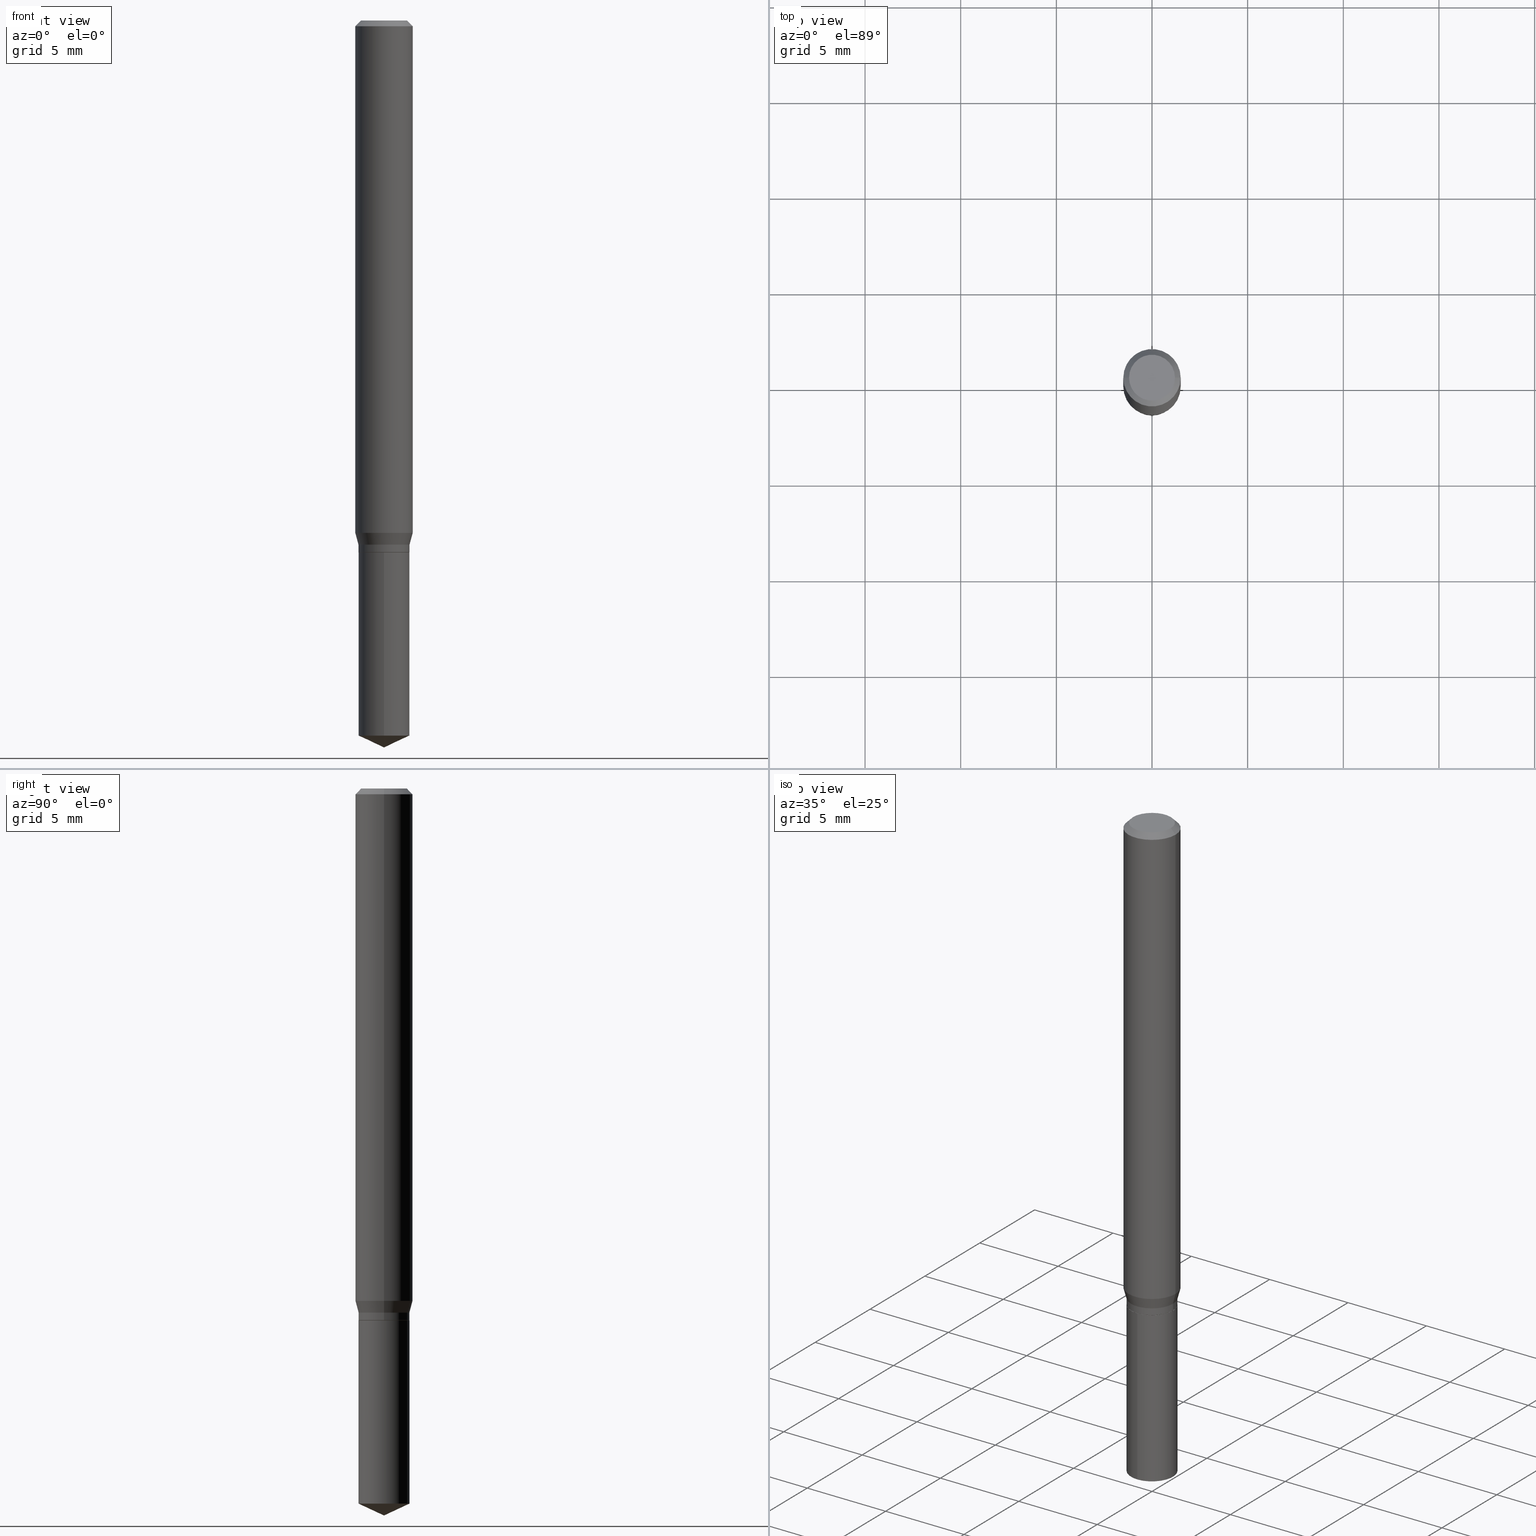
[diagram: canonical four-view strip — front | top / right | iso, engineering-drawing reading convention]
A machine part, canonical four-view strip (front | top / right | iso — engineering-drawing reading convention). The complete STEP part file that produces these views, byte-faithful:
ISO-10303-21;
HEADER;
FILE_DESCRIPTION (( 'STEP AP203' ),
    '1' );
FILE_NAME ('08025.STEP',
    '2024-04-24T09:11:59',
    ( '' ),
    ( '' ),
    'SwSTEP 2.0',
    'SolidWorks 2023',
    '' );
FILE_SCHEMA (( 'CONFIG_CONTROL_DESIGN' ));
ENDSEC;

DATA;
#1 = CONICAL_SURFACE ( 'NONE', #172, 84.42940631927412198, 1.134464013796314896 ) ;
#2 = PRODUCT_DEFINITION_FORMATION_WITH_SPECIFIED_SOURCE ( 'ANY', '', #157, .NOT_KNOWN. ) ;
#3 = EDGE_CURVE ( 'NONE', #90, #280, #180, .T. ) ;
#4 = CARTESIAN_POINT ( 'NONE',  ( 2.578604211317355052E-29, -3.681563412833531563E-15, -1.054441669750801669 ) ) ;
#5 = CALENDAR_DATE ( 2024, 24, 4 ) ;
#6 = CARTESIAN_POINT ( 'NONE',  ( 0.05254999999999999949, -3.669546887124133129E-16, 2.562430895680764282E-30 ) ) ;
#7 = SECURITY_CLASSIFICATION_LEVEL ( 'unclassified' ) ;
#8 = CARTESIAN_POINT ( 'NONE',  ( 0.05204999999999999211, -4.184889532737392438E-15, -1.094499999999999806 ) ) ;
#9 = CALENDAR_DATE ( 2024, 24, 4 ) ;
#10 = CONICAL_SURFACE ( 'NONE', #47, 84.42940631927412198, 1.134464013796314896 ) ;
#11 = DIRECTION ( 'NONE',  ( -2.445468806185136877E-29, 3.491481338843145188E-15, 1.000000000000000000 ) ) ;
#12 =( NAMED_UNIT ( * ) PLANE_ANGLE_UNIT ( ) SI_UNIT ( $, .RADIAN. ) );
#13 = EDGE_CURVE ( 'NONE', #148, #395, #270, .T. ) ;
#14 = DIRECTION ( 'NONE',  ( -2.445468806185136877E-29, 3.491481338843145188E-15, 1.000000000000000000 ) ) ;
#15 = DIRECTION ( 'NONE',  ( -6.982962677686267499E-15, -1.000000000000000000, 3.520397390770462942E-15 ) ) ;
#16 = EDGE_LOOP ( 'NONE', ( #363, #103, #100, #290 ) ) ;
#17 = EDGE_CURVE ( 'NONE', #203, #184, #222, .T. ) ;
#18 = AXIS2_PLACEMENT_3D ( 'NONE', #313, #399, #432 ) ;
#19 = DIRECTION ( 'NONE',  ( -2.445458899330790108E-29, 3.491495526022433599E-15, 1.000000000000000000 ) ) ;
#20 = APPROVAL_PERSON_ORGANIZATION ( #262, #150, #451 ) ;
#21 = VERTEX_POINT ( 'NONE', #217 ) ;
#22 = CARTESIAN_POINT ( 'NONE',  ( -3.669546887123774197E-16, -0.05255000000000515509, -1.471595532563954478 ) ) ;
#23 = CARTESIAN_POINT ( 'NONE',  ( 3.658672935554494692E-29, -5.223595400746700193E-15, -1.496099999999999985 ) ) ;
#24 = ORIENTED_EDGE ( 'NONE', *, *, #436, .T. ) ;
#25 = ORIENTED_EDGE ( 'NONE', *, *, #267, .T. ) ;
#26 = LINE ( 'NONE', #68, #242 ) ;
#27 = ORIENTED_EDGE ( 'NONE', *, *, #3, .F. ) ;
#28 = DIRECTION ( 'NONE',  ( -0.7071067811865453523, 2.468850131082234184E-15, -0.7071067811865496822 ) ) ;
#29 = CARTESIAN_POINT ( 'NONE',  ( 2.676565608369631794E-29, -3.821426325363822773E-15, -1.094499999999999806 ) ) ;
#30 = FACE_OUTER_BOUND ( 'NONE', #53, .T. ) ;
#31 = ADVANCED_FACE ( 'NONE', ( #366 ), #220, .F. ) ;
#32 = ORIENTED_EDGE ( 'NONE', *, *, #119, .T. ) ;
#33 = CARTESIAN_POINT ( 'NONE',  ( -0.05204999999999999211, -3.448939604226579531E-15, -1.094499999999999806 ) ) ;
#34 = VERTEX_POINT ( 'NONE', #448 ) ;
#35 = DIRECTION ( 'NONE',  ( 1.000000000000000000, -6.982962677686265133E-15, 0.000000000000000000 ) ) ;
#36 = SHAPE_DEFINITION_REPRESENTATION ( #117, #462 ) ;
#37 = ADVANCED_FACE ( 'NONE', ( #107 ), #333, .F. ) ;
#38 = CARTESIAN_POINT ( 'NONE',  ( 0.000000000000000000, 0.000000000000000000, 0.000000000000000000 ) ) ;
#39 = CLOSED_SHELL ( 'NONE', ( #312, #214, #406, #472, #177, #88, #300, #98, #46, #37, #452, #260 ) ) ;
#40 = CC_DESIGN_DATE_AND_TIME_ASSIGNMENT ( #265, #153, ( #340 ) ) ;
#41 = CC_DESIGN_APPROVAL ( #150, ( #325 ) ) ;
#42 = FACE_OUTER_BOUND ( 'NONE', #92, .T. ) ;
#43 = MANIFOLD_SOLID_BREP ( 'Body-Move/Copy2[1]', #315 ) ;
#44 = DIRECTION ( 'NONE',  ( 1.000000000000000000, -6.982962677686266711E-15, 4.876176775795936353E-29 ) ) ;
#45 = DIRECTION ( 'NONE',  ( 1.000000000000000000, -6.982962677686266711E-15, 4.876185090822587894E-29 ) ) ;
#46 = ADVANCED_FACE ( 'NONE', ( #272 ), #421, .T. ) ;
#47 = AXIS2_PLACEMENT_3D ( 'NONE', #489, #425, #303 ) ;
#48 = AXIS2_PLACEMENT_3D ( 'NONE', #449, #216, #410 ) ;
#49 = CARTESIAN_POINT ( 'NONE',  ( 2.888098660104664204E-31, -4.123439461173780263E-17, -0.01181000000000007218 ) ) ;
#50 = DIRECTION ( 'NONE',  ( 1.000000000000000000, -6.982962677686266711E-15, 0.000000000000000000 ) ) ;
#51 = EDGE_CURVE ( 'NONE', #295, #184, #454, .T. ) ;
#52 = CARTESIAN_POINT ( 'NONE',  ( 3.658651059288794515E-29, -5.223626456482161457E-15, -1.496099999999999985 ) ) ;
#53 = EDGE_LOOP ( 'NONE', ( #321, #209, #189, #453 ) ) ;
#54 = LINE ( 'NONE', #391, #257 ) ;
#55 = ORIENTED_EDGE ( 'NONE', *, *, #159, .T. ) ;
#56 = DIRECTION ( 'NONE',  ( 1.000000000000000000, -6.982962677686265133E-15, 0.000000000000000000 ) ) ;
#57 = ORIENTED_EDGE ( 'NONE', *, *, #384, .F. ) ;
#58 = DIRECTION ( 'NONE',  ( 1.000000000000000000, -6.982962677686265922E-15, 0.000000000000000000 ) ) ;
#59 = ORIENTED_EDGE ( 'NONE', *, *, #167, .F. ) ;
#60 = CC_DESIGN_PERSON_AND_ORGANIZATION_ASSIGNMENT ( #254, #141, ( #325 ) ) ;
#61 = AXIS2_PLACEMENT_3D ( 'NONE', #194, #156, #45 ) ;
#62 = CARTESIAN_POINT ( 'NONE',  ( 2.675342873966538993E-29, -3.819680584694400481E-15, -1.093999999999999861 ) ) ;
#63 = LOCAL_TIME ( 5, 11, 59.00000000000000000, #271 ) ;
#64 = DATE_AND_TIME ( #218, #356 ) ;
#65 = DIRECTION ( 'NONE',  ( -2.445468806185136597E-29, 3.491481338843145583E-15, 1.000000000000000000 ) ) ;
#66 = DIRECTION ( 'NONE',  ( 0.2588190451025215166, 1.565188264969620784E-15, 0.9659258262890679791 ) ) ;
#67 = EDGE_CURVE ( 'NONE', #203, #138, #324, .T. ) ;
#68 = CARTESIAN_POINT ( 'NONE',  ( -0.05904999999999999832, 3.711095515056362547E-16, -0.01181000000000007218 ) ) ;
#69 = DIRECTION ( 'NONE',  ( -1.000000000000000000, 6.982962677686265922E-15, -4.876176775795935793E-29 ) ) ;
#70 = CARTESIAN_POINT ( 'NONE',  ( 2.637927201231906442E-29, -3.766260920210100894E-15, -1.078699999999999992 ) ) ;
#71 = ORIENTED_EDGE ( 'NONE', *, *, #398, .F. ) ;
#72 = AXIS2_PLACEMENT_3D ( 'NONE', #284, #89, #56 ) ;
#73 = DIRECTION ( 'NONE',  ( 1.000000000000000000, -6.982962677686265922E-15, 0.000000000000000000 ) ) ;
#74 = ADVANCED_FACE ( 'NONE', ( #42 ), #75, .T. ) ;
#75 = CYLINDRICAL_SURFACE ( 'NONE', #438, 0.05254999999999999949 ) ;
#76 = PERSON_AND_ORGANIZATION ( #212, #469 ) ;
#77 = DIRECTION ( 'NONE',  ( -6.328713451373370167E-15, -0.9063077870366487154, 0.4226182617407018838 ) ) ;
#78 = AXIS2_PLACEMENT_3D ( 'NONE', #305, #337, #35 ) ;
#79 = CIRCLE ( 'NONE', #326, 0.05254999999999999949 ) ;
#80 = CARTESIAN_POINT ( 'NONE',  ( 3.598737234376038977E-29, -5.138053690193917852E-15, -1.471595532563954700 ) ) ;
#81 = ADVANCED_FACE ( 'NONE', ( #266 ), #10, .T. ) ;
#82 = CARTESIAN_POINT ( 'NONE',  ( -0.05254999999999999949, -3.419580544810318536E-15, -1.078699999999999992 ) ) ;
#83 = CYLINDRICAL_SURFACE ( 'NONE', #225, 0.05254999999999999949 ) ;
#84 = CIRCLE ( 'NONE', #61, 0.04724000000000000421 ) ;
#85 = LOCAL_TIME ( 5, 11, 59.00000000000000000, #405 ) ;
#86 = DIRECTION ( 'NONE',  ( 2.445468806185136597E-29, -3.491481338843145583E-15, -1.000000000000000000 ) ) ;
#87 = ORIENTED_EDGE ( 'NONE', *, *, #281, .F. ) ;
#88 = ADVANCED_FACE ( 'NONE', ( #158 ), #83, .T. ) ;
#89 = DIRECTION ( 'NONE',  ( -2.445468806185136597E-29, 3.491481338843145583E-15, 1.000000000000000000 ) ) ;
#90 = VERTEX_POINT ( 'NONE', #456 ) ;
#91 = DIRECTION ( 'NONE',  ( -1.000000000000000000, 6.982962677686266711E-15, 0.000000000000000000 ) ) ;
#92 = EDGE_LOOP ( 'NONE', ( #182, #213, #27, #474 ) ) ;
#93 = DIRECTION ( 'NONE',  ( 0.000000000000000000, 0.000000000000000000, 1.000000000000000000 ) ) ;
#94 = CIRCLE ( 'NONE', #163, 0.04724000000000000421 ) ;
#95 = VECTOR ( 'NONE', #77, 39.37007874015748854 ) ;
#96 = DIRECTION ( 'NONE',  ( 1.000000000000000000, -6.982962677686265133E-15, 0.000000000000000000 ) ) ;
#97 = ORIENTED_EDGE ( 'NONE', *, *, #159, .F. ) ;
#98 = ADVANCED_FACE ( 'NONE', ( #455 ), #235, .T. ) ;
#99 = ORIENTED_EDGE ( 'NONE', *, *, #134, .T. ) ;
#100 = ORIENTED_EDGE ( 'NONE', *, *, #13, .F. ) ;
#101 = CYLINDRICAL_SURFACE ( 'NONE', #349, 0.05905000000000006771 ) ;
#102 = CIRCLE ( 'NONE', #372, 0.05905000000000013016 ) ;
#103 = ORIENTED_EDGE ( 'NONE', *, *, #384, .T. ) ;
#104 = CC_DESIGN_APPROVAL ( #113, ( #2 ) ) ;
#105 = EDGE_CURVE ( 'NONE', #411, #331, #396, .T. ) ;
#106 = DIRECTION ( 'NONE',  ( -2.438088387897960049E-29, 3.491481338843145188E-15, 1.000000000000000000 ) ) ;
#107 = FACE_OUTER_BOUND ( 'NONE', #450, .T. ) ;
#108 = EDGE_LOOP ( 'NONE', ( #227, #402 ) ) ;
#109 = CALENDAR_DATE ( 2024, 24, 4 ) ;
#110 = EDGE_LOOP ( 'NONE', ( #246, #329, #471, #97 ) ) ;
#111 = AXIS2_PLACEMENT_3D ( 'NONE', #248, #86, #91 ) ;
#112 = VECTOR ( 'NONE', #320, 39.37007874015748143 ) ;
#113 = APPROVAL ( #458, 'UNSPECIFIED' ) ;
#114 = DIRECTION ( 'NONE',  ( 2.445468806185136597E-29, -3.491481338843145583E-15, -1.000000000000000000 ) ) ;
#115 = DATE_AND_TIME ( #236, #146 ) ;
#116 = DIRECTION ( 'NONE',  ( -2.445468806185136597E-29, 3.491481338843145583E-15, 1.000000000000000000 ) ) ;
#117 = PRODUCT_DEFINITION_SHAPE ( 'NONE', 'NONE',  #325 ) ;
#118 = CARTESIAN_POINT ( 'NONE',  ( 0.000000000000000000, 0.000000000000000000, 0.000000000000000000 ) ) ;
#119 = EDGE_CURVE ( 'NONE', #244, #34, #84, .T. ) ;
#120 = VECTOR ( 'NONE', #66, 39.37007874015748143 ) ;
#121 = DIRECTION ( 'NONE',  ( 1.000000000000000000, -6.982962677686265922E-15, 0.000000000000000000 ) ) ;
#122 = PERSON_AND_ORGANIZATION ( #212, #469 ) ;
#123 = CARTESIAN_POINT ( 'NONE',  ( 8.265746106709734507E-48, -1.180129479067563789E-33, -3.380025165646692144E-19 ) ) ;
#124 = EDGE_CURVE ( 'NONE', #184, #295, #102, .T. ) ;
#125 = CYLINDRICAL_SURFACE ( 'NONE', #181, 0.05254999999999999949 ) ;
#126 = ORIENTED_EDGE ( 'NONE', *, *, #142, .T. ) ;
#127 = AXIS2_PLACEMENT_3D ( 'NONE', #322, #204, #96 ) ;
#128 = CONICAL_SURFACE ( 'NONE', #72, 0.05204999999999999211, 0.7853981633975507526 ) ;
#129 = LINE ( 'NONE', #170, #388 ) ;
#130 = ORIENTED_EDGE ( 'NONE', *, *, #247, .T. ) ;
#131 = DIRECTION ( 'NONE',  ( 6.439704144417026409E-15, 0.9063077870366517130, 0.4226182617406956665 ) ) ;
#132 = LINE ( 'NONE', #475, #446 ) ;
#133 = ORIENTED_EDGE ( 'NONE', *, *, #443, .F. ) ;
#134 = EDGE_CURVE ( 'NONE', #258, #311, #420, .T. ) ;
#135 = AXIS2_PLACEMENT_3D ( 'NONE', #62, #327, #73 ) ;
#136 = CIRCLE ( 'NONE', #48, 0.05254999999999999949 ) ;
#137 = FACE_OUTER_BOUND ( 'NONE', #16, .T. ) ;
#138 = VERTEX_POINT ( 'NONE', #82 ) ;
#139 = LINE ( 'NONE', #185, #415 ) ;
#140 = CARTESIAN_POINT ( 'NONE',  ( 0.05254999999999999949, -4.133215608922514355E-15, -1.078699999999999992 ) ) ;
#141 = PERSON_AND_ORGANIZATION_ROLE ( 'creator' ) ;
#142 = EDGE_CURVE ( 'NONE', #395, #148, #188, .T. ) ;
#143 = ORIENTED_EDGE ( 'NONE', *, *, #281, .T. ) ;
#144 = CARTESIAN_POINT ( 'NONE',  ( -0.05905000000000006771, 4.195754854663396409E-16, -2.904631170795525045E-30 ) ) ;
#145 = DIRECTION ( 'NONE',  ( 6.982962677686265922E-15, 1.000000000000000000, -3.491495526022433599E-15 ) ) ;
#146 = LOCAL_TIME ( 5, 11, 59.00000000000000000, #338 ) ;
#147 = DIRECTION ( 'NONE',  ( 0.7071067811865453523, -7.319954787623248157E-15, -0.7071067811865496822 ) ) ;
#148 = VERTEX_POINT ( 'NONE', #381 ) ;
#149 = ORIENTED_EDGE ( 'NONE', *, *, #124, .T. ) ;
#150 = APPROVAL ( #296, 'UNSPECIFIED' ) ;
#151 = CARTESIAN_POINT ( 'NONE',  ( 2.888098660104664204E-31, -4.123439461173780263E-17, -0.01181000000000007218 ) ) ;
#152 = AXIS2_PLACEMENT_3D ( 'NONE', #367, #483, #145 ) ;
#153 = DATE_TIME_ROLE ( 'classification_date' ) ;
#154 = CONICAL_SURFACE ( 'NONE', #195, 0.05254999999999999949, 0.2617993877991502405 ) ;
#155 = DESIGN_CONTEXT ( 'detailed design', #238, 'design' ) ;
#156 = DIRECTION ( 'NONE',  ( -2.445468806185136597E-29, 3.491481338843145583E-15, 1.000000000000000000 ) ) ;
#157 = PRODUCT ( '08025', '08025', '', ( #397 ) ) ;
#158 = FACE_OUTER_BOUND ( 'NONE', #479, .T. ) ;
#159 = EDGE_CURVE ( 'NONE', #148, #203, #343, .T. ) ;
#160 = APPROVAL_DATE_TIME ( #115, #334 ) ;
#161 = FACE_OUTER_BOUND ( 'NONE', #191, .T. ) ;
#162 = DATE_AND_TIME ( #9, #63 ) ;
#163 = AXIS2_PLACEMENT_3D ( 'NONE', #123, #274, #307 ) ;
#164 = CC_DESIGN_SECURITY_CLASSIFICATION ( #340, ( #2 ) ) ;
#165 = DIRECTION ( 'NONE',  ( -2.445458899330790108E-29, 3.491495526022433205E-15, 1.000000000000000000 ) ) ;
#166 =( NAMED_UNIT ( * ) SI_UNIT ( $, .STERADIAN. ) SOLID_ANGLE_UNIT ( ) );
#167 = EDGE_CURVE ( 'NONE', #21, #311, #250, .T. ) ;
#168 = CARTESIAN_POINT ( 'NONE',  ( 0.05904999999999999832, -4.535783407291118600E-16, -0.01181000000000007218 ) ) ;
#169 = ORIENTED_EDGE ( 'NONE', *, *, #183, .T. ) ;
#170 = CARTESIAN_POINT ( 'NONE',  ( -3.669546887123864916E-16, -0.05255000000000382282, -1.094499999999999806 ) ) ;
#171 = ORIENTED_EDGE ( 'NONE', *, *, #183, .F. ) ;
#172 = AXIS2_PLACEMENT_3D ( 'NONE', #357, #175, #15 ) ;
#173 = VECTOR ( 'NONE', #14, 39.37007874015748143 ) ;
#174 = DIRECTION ( 'NONE',  ( -2.445468806185136597E-29, 3.491481338843145583E-15, 1.000000000000000000 ) ) ;
#175 = DIRECTION ( 'NONE',  ( -2.445458899330790108E-29, 3.491495526022433205E-15, 1.000000000000000000 ) ) ;
#176 = ORIENTED_EDGE ( 'NONE', *, *, #240, .T. ) ;
#177 = ADVANCED_FACE ( 'NONE', ( #197 ), #309, .T. ) ;
#178 = DIRECTION ( 'NONE',  ( -2.445458899330790108E-29, 3.491495526022433599E-15, 1.000000000000000000 ) ) ;
#179 = ORIENTED_EDGE ( 'NONE', *, *, #247, .F. ) ;
#180 = CIRCLE ( 'NONE', #379, 0.05254999999999999949 ) ;
#181 = AXIS2_PLACEMENT_3D ( 'NONE', #470, #286, #251 ) ;
#182 = ORIENTED_EDGE ( 'NONE', *, *, #390, .T. ) ;
#183 = EDGE_CURVE ( 'NONE', #34, #244, #94, .T. ) ;
#184 = VERTEX_POINT ( 'NONE', #345 ) ;
#185 = CARTESIAN_POINT ( 'NONE',  ( 0.05904999999999999832, -4.463468013801466955E-16, -0.01181000000000007218 ) ) ;
#186 = VERTEX_POINT ( 'NONE', #8 ) ;
#187 = CARTESIAN_POINT ( 'NONE',  ( 2.637927201231906442E-29, -3.766260920210100894E-15, -1.078699999999999992 ) ) ;
#188 = CIRCLE ( 'NONE', #285, 0.05254999999999999949 ) ;
#189 = ORIENTED_EDGE ( 'NONE', *, *, #124, .F. ) ;
#190 = DIRECTION ( 'NONE',  ( -2.445468806185136597E-29, 3.491481338843145583E-15, 1.000000000000000000 ) ) ;
#191 = EDGE_LOOP ( 'NONE', ( #249, #130, #314 ) ) ;
#192 = ADVANCED_FACE ( 'NONE', ( #161 ), #1, .T. ) ;
#193 = DIRECTION ( 'NONE',  ( -6.982962677686265922E-15, -1.000000000000000000, 2.599284484932695853E-15 ) ) ;
#194 = CARTESIAN_POINT ( 'NONE',  ( 8.265746106709734507E-48, -1.180129479067563789E-33, -3.380025165646692144E-19 ) ) ;
#195 = AXIS2_PLACEMENT_3D ( 'NONE', #187, #294, #412 ) ;
#196 = DIRECTION ( 'NONE',  ( -2.445468806185136597E-29, 3.491481338843145583E-15, 1.000000000000000000 ) ) ;
#197 = FACE_OUTER_BOUND ( 'NONE', #110, .T. ) ;
#198 = CARTESIAN_POINT ( 'NONE',  ( 0.000000000000000000, 0.000000000000000000, 0.000000000000000000 ) ) ;
#199 = AXIS2_PLACEMENT_3D ( 'NONE', #80, #426, #457 ) ;
#200 = LENGTH_MEASURE_WITH_UNIT ( LENGTH_MEASURE( 0.02539999999999999897 ), #403 );
#201 = FACE_OUTER_BOUND ( 'NONE', #360, .T. ) ;
#202 = DIRECTION ( 'NONE',  ( 1.000000000000000000, -6.982962677686265133E-15, 0.000000000000000000 ) ) ;
#203 = VERTEX_POINT ( 'NONE', #389 ) ;
#204 = DIRECTION ( 'NONE',  ( -2.445468806185136597E-29, 3.491481338843145583E-15, 1.000000000000000000 ) ) ;
#205 = UNCERTAINTY_MEASURE_WITH_UNIT (LENGTH_MEASURE( 1.000000000000000082E-05 ), #342, 'distance_accuracy_value', 'NONE');
#206 = VECTOR ( 'NONE', #221, 39.37007874015748143 ) ;
#207 = EDGE_CURVE ( 'NONE', #21, #280, #354, .T. ) ;
#208 = CARTESIAN_POINT ( 'NONE',  ( 2.676565608369631234E-29, -3.821426325363821984E-15, -1.094499999999999806 ) ) ;
#209 = ORIENTED_EDGE ( 'NONE', *, *, #377, .T. ) ;
#210 = CARTESIAN_POINT ( 'NONE',  ( -0.05204999999999999211, -3.451588831400689943E-15, -1.094499999999999806 ) ) ;
#211 = EDGE_LOOP ( 'NONE', ( #283, #171, #477, #289 ) ) ;
#212 = PERSON ( 'UNSPECIFIED', 'UNSPECIFIED', 'UNSPECIFIED', ('UNSPECIFIED'), ('UNSPECIFIED'), ('UNSPECIFIED') ) ;
#213 = ORIENTED_EDGE ( 'NONE', *, *, #207, .T. ) ;
#214 = ADVANCED_FACE ( 'NONE', ( #201 ), #263, .T. ) ;
#215 = VECTOR ( 'NONE', #131, 39.37007874015748143 ) ;
#216 = DIRECTION ( 'NONE',  ( -2.445458899330790108E-29, 3.491495526022433205E-15, 1.000000000000000000 ) ) ;
#217 = CARTESIAN_POINT ( 'NONE',  ( 3.733902076419686358E-16, 0.05254999999999486471, -1.471595532563955144 ) ) ;
#218 = CALENDAR_DATE ( 2024, 24, 4 ) ;
#219 = CC_DESIGN_PERSON_AND_ORGANIZATION_ASSIGNMENT ( #383, #230, ( #2 ) ) ;
#220 = PLANE ( 'NONE',  #152 ) ;
#221 = DIRECTION ( 'NONE',  ( -2.445468806185136877E-29, 3.491481338843145188E-15, 1.000000000000000000 ) ) ;
#222 = LINE ( 'NONE', #140, #120 ) ;
#223 = PERSON_AND_ORGANIZATION ( #212, #469 ) ;
#224 = FACE_OUTER_BOUND ( 'NONE', #323, .T. ) ;
#225 = AXIS2_PLACEMENT_3D ( 'NONE', #198, #196, #387 ) ;
#226 = LOCAL_TIME ( 5, 11, 59.00000000000000000, #347 ) ;
#227 = ORIENTED_EDGE ( 'NONE', *, *, #232, .F. ) ;
#228 = DATE_AND_TIME ( #109, #85 ) ;
#229 = ORIENTED_EDGE ( 'NONE', *, *, #51, .F. ) ;
#230 = PERSON_AND_ORGANIZATION_ROLE ( 'creator' ) ;
#231 = DIRECTION ( 'NONE',  ( -2.445468806185136597E-29, 3.491481338843145583E-15, 1.000000000000000000 ) ) ;
#232 = EDGE_CURVE ( 'NONE', #186, #413, #241, .T. ) ;
#233 = DIRECTION ( 'NONE',  ( -2.445468806185136597E-29, 3.491481338843145583E-15, 1.000000000000000000 ) ) ;
#234 = CONICAL_SURFACE ( 'NONE', #18, 0.05254999999999999949, 0.2617993877991502405 ) ;
#235 = CYLINDRICAL_SURFACE ( 'NONE', #332, 0.05905000000000006771 ) ;
#236 = CALENDAR_DATE ( 2024, 24, 4 ) ;
#237 = DIRECTION ( 'NONE',  ( 1.000000000000000000, -6.982962677686266711E-15, 4.876176775795935793E-29 ) ) ;
#238 = APPLICATION_CONTEXT ( 'configuration controlled 3d designs of mechanical parts and assemblies' ) ;
#239 = CARTESIAN_POINT ( 'NONE',  ( 3.733902076419593174E-16, 0.05254999999999616922, -1.094500000000000028 ) ) ;
#240 = EDGE_CURVE ( 'NONE', #311, #90, #129, .T. ) ;
#241 = CIRCLE ( 'NONE', #476, 0.05204999999999999211 ) ;
#242 = VECTOR ( 'NONE', #28, 39.37007874015748143 ) ;
#243 = CARTESIAN_POINT ( 'NONE',  ( 0.05905000000000006771, -4.123439461173745257E-16, 2.879382386107503723E-30 ) ) ;
#244 = VERTEX_POINT ( 'NONE', #393 ) ;
#245 = LINE ( 'NONE', #243, #173 ) ;
#246 = ORIENTED_EDGE ( 'NONE', *, *, #13, .T. ) ;
#247 = EDGE_CURVE ( 'NONE', #258, #21, #468, .T. ) ;
#248 = CARTESIAN_POINT ( 'NONE',  ( 2.888098660104664204E-31, -4.123439461173780263E-17, -0.01181000000000007218 ) ) ;
#249 = ORIENTED_EDGE ( 'NONE', *, *, #134, .F. ) ;
#250 = CIRCLE ( 'NONE', #199, 0.05254999999999999949 ) ;
#251 = DIRECTION ( 'NONE',  ( -6.982962677686265922E-15, -1.000000000000000000, 2.599284484932695853E-15 ) ) ;
#252 = CARTESIAN_POINT ( 'NONE',  ( -0.05904999999999999832, -1.441823418256294167E-15, -0.01181000000000007218 ) ) ;
#253 = ORIENTED_EDGE ( 'NONE', *, *, #105, .F. ) ;
#254 = PERSON_AND_ORGANIZATION ( #212, #469 ) ;
#255 = ORIENTED_EDGE ( 'NONE', *, *, #361, .F. ) ;
#256 = COORDINATED_UNIVERSAL_TIME_OFFSET ( 5, 0, .BEHIND. ) ;
#257 = VECTOR ( 'NONE', #435, 39.37007874015748143 ) ;
#258 = VERTEX_POINT ( 'NONE', #52 ) ;
#259 = CARTESIAN_POINT ( 'NONE',  ( 4.132873053354867254E-48, -5.900647395337818946E-34, -1.690012582823346072E-19 ) ) ;
#260 = ADVANCED_FACE ( 'NONE', ( #428 ), #364, .T. ) ;
#261 = EDGE_LOOP ( 'NONE', ( #133, #444, #408, #253 ) ) ;
#262 = PERSON_AND_ORGANIZATION ( #212, #469 ) ;
#263 = CONICAL_SURFACE ( 'NONE', #111, 0.05904999999999999832, 0.7853981633974452814 ) ;
#264 = DIRECTION ( 'NONE',  ( -6.982962677686265922E-15, -1.000000000000000000, 2.599284484932695853E-15 ) ) ;
#265 = DATE_AND_TIME ( #5, #226 ) ;
#266 = FACE_OUTER_BOUND ( 'NONE', #355, .T. ) ;
#267 = EDGE_CURVE ( 'NONE', #186, #148, #132, .T. ) ;
#268 = DIRECTION ( 'NONE',  ( 1.000000000000000000, -6.982962677686265133E-15, 0.000000000000000000 ) ) ;
#269 = DIRECTION ( 'NONE',  ( -2.445468806185136597E-29, 3.491481338843145583E-15, 1.000000000000000000 ) ) ;
#270 = CIRCLE ( 'NONE', #135, 0.05254999999999999949 ) ;
#271 = COORDINATED_UNIVERSAL_TIME_OFFSET ( 5, 0, .BEHIND. ) ;
#272 = FACE_OUTER_BOUND ( 'NONE', #211, .T. ) ;
#273 = APPLICATION_PROTOCOL_DEFINITION ( 'international standard', 'config_control_design', 1994, #382 ) ;
#274 = DIRECTION ( 'NONE',  ( -2.445468806185136597E-29, 3.491481338843145583E-15, 1.000000000000000000 ) ) ;
#275 = DIRECTION ( 'NONE',  ( 1.000000000000000000, 0.000000000000000000, 0.000000000000000000 ) ) ;
#276 = LINE ( 'NONE', #352, #373 ) ;
#277 = ORIENTED_EDGE ( 'NONE', *, *, #443, .T. ) ;
#278 = APPROVAL_PERSON_ORGANIZATION ( #461, #113, #419 ) ;
#279 = CARTESIAN_POINT ( 'NONE',  ( 3.733902076419685865E-16, 0.05254999999999616922, -1.094500000000000028 ) ) ;
#280 = VERTEX_POINT ( 'NONE', #279 ) ;
#281 = EDGE_CURVE ( 'NONE', #331, #411, #301, .T. ) ;
#282 = DIRECTION ( 'NONE',  ( 0.7071067811866199593, -2.468850131083015945E-15, 0.7071067811864750752 ) ) ;
#283 = ORIENTED_EDGE ( 'NONE', *, *, #436, .F. ) ;
#284 = CARTESIAN_POINT ( 'NONE',  ( 2.676565608369631234E-29, -3.821426325363821984E-15, -1.094499999999999806 ) ) ;
#285 = AXIS2_PLACEMENT_3D ( 'NONE', #463, #233, #460 ) ;
#286 = DIRECTION ( 'NONE',  ( -2.445458899330790108E-29, 3.491495526022433205E-15, 1.000000000000000000 ) ) ;
#287 = CC_DESIGN_DATE_AND_TIME_ASSIGNMENT ( #64, #409, ( #325 ) ) ;
#288 = FACE_OUTER_BOUND ( 'NONE', #108, .T. ) ;
#289 = ORIENTED_EDGE ( 'NONE', *, *, #105, .T. ) ;
#290 = ORIENTED_EDGE ( 'NONE', *, *, #267, .F. ) ;
#291 = AXIS2_PLACEMENT_3D ( 'NONE', #151, #114, #306 ) ;
#292 = CIRCLE ( 'NONE', #365, 0.05204999999999999211 ) ;
#293 = DIRECTION ( 'NONE',  ( -2.445458899330790108E-29, 3.491495526022433205E-15, 1.000000000000000000 ) ) ;
#294 = DIRECTION ( 'NONE',  ( -2.445468806185136597E-29, 3.491481338843145583E-15, 1.000000000000000000 ) ) ;
#295 = VERTEX_POINT ( 'NONE', #473 ) ;
#296 = APPROVAL_STATUS ( 'not_yet_approved' ) ;
#297 = DIRECTION ( 'NONE',  ( -2.445458899330790108E-29, 3.491495526022433205E-15, 1.000000000000000000 ) ) ;
#298 = ORIENTED_EDGE ( 'NONE', *, *, #119, .F. ) ;
#299 = PERSON_AND_ORGANIZATION ( #212, #469 ) ;
#300 = ADVANCED_FACE ( 'NONE', ( #350 ), #234, .T. ) ;
#301 = CIRCLE ( 'NONE', #407, 0.05904999999999999832 ) ;
#302 =( GEOMETRIC_REPRESENTATION_CONTEXT ( 3 ) GLOBAL_UNCERTAINTY_ASSIGNED_CONTEXT ( ( #205 ) ) GLOBAL_UNIT_ASSIGNED_CONTEXT ( ( #342, #12, #166 ) ) REPRESENTATION_CONTEXT ( 'NONE', 'WORKASPACE' ) );
#303 = DIRECTION ( 'NONE',  ( -6.982962677686267499E-15, -1.000000000000000000, 3.520397390770462942E-15 ) ) ;
#304 = PERSON_AND_ORGANIZATION_ROLE ( 'design_supplier' ) ;
#305 = CARTESIAN_POINT ( 'NONE',  ( 2.578604211317355052E-29, -3.681563412833531563E-15, -1.054441669750801669 ) ) ;
#306 = DIRECTION ( 'NONE',  ( -1.000000000000000000, 6.982962677686266711E-15, 0.000000000000000000 ) ) ;
#307 = DIRECTION ( 'NONE',  ( 1.000000000000000000, -6.982962677686266711E-15, 4.876185090822587894E-29 ) ) ;
#308 = AXIS2_PLACEMENT_3D ( 'NONE', #118, #269, #237 ) ;
#309 = CYLINDRICAL_SURFACE ( 'NONE', #308, 0.05254999999999999949 ) ;
#310 = CARTESIAN_POINT ( 'NONE',  ( 2.676565608369631234E-29, -3.821426325363821984E-15, -1.094499999999999806 ) ) ;
#311 = VERTEX_POINT ( 'NONE', #22 ) ;
#312 = ADVANCED_FACE ( 'NONE', ( #137 ), #128, .T. ) ;
#313 = CARTESIAN_POINT ( 'NONE',  ( 2.637927201231906442E-29, -3.766260920210100894E-15, -1.078699999999999992 ) ) ;
#314 = ORIENTED_EDGE ( 'NONE', *, *, #390, .F. ) ;
#315 = CLOSED_SHELL ( 'NONE', ( #74, #192, #81, #351, #31 ) ) ;
#316 = CARTESIAN_POINT ( 'NONE',  ( 0.000000000000000000, 0.000000000000000000, 0.000000000000000000 ) ) ;
#317 = AXIS2_PLACEMENT_3D ( 'NONE', #70, #190, #58 ) ;
#318 = DIRECTION ( 'NONE',  ( -2.445468806185136597E-29, 3.491481338843145583E-15, 1.000000000000000000 ) ) ;
#319 = ORIENTED_EDGE ( 'NONE', *, *, #142, .F. ) ;
#320 = DIRECTION ( 'NONE',  ( -0.7071067811866199593, 7.493145998870616062E-15, 0.7071067811864750752 ) ) ;
#321 = ORIENTED_EDGE ( 'NONE', *, *, #67, .T. ) ;
#322 = CARTESIAN_POINT ( 'NONE',  ( 2.676565608369631234E-29, -3.821426325363821984E-15, -1.094499999999999806 ) ) ;
#323 = EDGE_LOOP ( 'NONE', ( #149, #277, #87, #431 ) ) ;
#324 = CIRCLE ( 'NONE', #459, 0.05254999999999999949 ) ;
#325 = PRODUCT_DEFINITION ( 'UNKNOWN', '', #2, #155 ) ;
#326 = AXIS2_PLACEMENT_3D ( 'NONE', #335, #297, #487 ) ;
#327 = DIRECTION ( 'NONE',  ( -2.445468806185136597E-29, 3.491481338843145583E-15, 1.000000000000000000 ) ) ;
#328 = PRODUCT_RELATED_PRODUCT_CATEGORY ( 'detail', '', ( #157 ) ) ;
#329 = ORIENTED_EDGE ( 'NONE', *, *, #361, .T. ) ;
#330 = EDGE_CURVE ( 'NONE', #184, #331, #245, .T. ) ;
#331 = VERTEX_POINT ( 'NONE', #168 ) ;
#332 = AXIS2_PLACEMENT_3D ( 'NONE', #38, #418, #44 ) ;
#333 = PLANE ( 'NONE',  #467 ) ;
#334 = APPROVAL ( #376, 'UNSPECIFIED' ) ;
#335 = CARTESIAN_POINT ( 'NONE',  ( 2.676565608369631794E-29, -3.821426325363822773E-15, -1.094499999999999806 ) ) ;
#336 = EDGE_LOOP ( 'NONE', ( #392, #488 ) ) ;
#337 = DIRECTION ( 'NONE',  ( -2.445468806185136597E-29, 3.491481338843145583E-15, 1.000000000000000000 ) ) ;
#338 = COORDINATED_UNIVERSAL_TIME_OFFSET ( 5, 0, .BEHIND. ) ;
#339 = VECTOR ( 'NONE', #178, 39.37007874015748143 ) ;
#340 = SECURITY_CLASSIFICATION ( '', '', #7 ) ;
#341 = CARTESIAN_POINT ( 'NONE',  ( 2.888098660104664204E-31, -4.123439461173780263E-17, -0.01181000000000007218 ) ) ;
#342 =( CONVERSION_BASED_UNIT ( 'INCH', #200 ) LENGTH_UNIT ( ) NAMED_UNIT ( #434 ) );
#343 = LINE ( 'NONE', #6, #427 ) ;
#344 = APPROVAL_ROLE ( '' ) ;
#345 = CARTESIAN_POINT ( 'NONE',  ( 0.05905000000000013016, -4.093907358950906483E-15, -1.054441669750801669 ) ) ;
#346 = EDGE_CURVE ( 'NONE', #413, #186, #292, .T. ) ;
#347 = COORDINATED_UNIVERSAL_TIME_OFFSET ( 5, 0, .BEHIND. ) ;
#348 = CARTESIAN_POINT ( 'NONE',  ( 3.658651059288795076E-29, -5.223626456482161457E-15, -1.496099999999999985 ) ) ;
#349 = AXIS2_PLACEMENT_3D ( 'NONE', #481, #65, #484 ) ;
#350 = FACE_OUTER_BOUND ( 'NONE', #374, .T. ) ;
#351 = ADVANCED_FACE ( 'NONE', ( #465 ), #125, .T. ) ;
#352 = CARTESIAN_POINT ( 'NONE',  ( -0.05254999999999999949, 3.733902076419326440E-16, -2.584900389928952520E-30 ) ) ;
#353 = ORIENTED_EDGE ( 'NONE', *, *, #486, .F. ) ;
#354 = LINE ( 'NONE', #239, #339 ) ;
#355 = EDGE_LOOP ( 'NONE', ( #179, #99, #59 ) ) ;
#356 = LOCAL_TIME ( 5, 11, 59.00000000000000000, #256 ) ;
#357 = CARTESIAN_POINT ( 'NONE',  ( -9.261924752013118283E-28, 1.322368428517963298E-13, 37.87397874015748300 ) ) ;
#358 = EDGE_LOOP ( 'NONE', ( #57, #482, #25, #319 ) ) ;
#359 = LINE ( 'NONE', #210, #112 ) ;
#360 = EDGE_LOOP ( 'NONE', ( #298, #24, #143, #71 ) ) ;
#361 = EDGE_CURVE ( 'NONE', #395, #138, #276, .T. ) ;
#362 = CARTESIAN_POINT ( 'NONE',  ( -0.05254999999999999949, -3.419580544810318536E-15, -1.093999999999999861 ) ) ;
#363 = ORIENTED_EDGE ( 'NONE', *, *, #232, .T. ) ;
#364 = CONICAL_SURFACE ( 'NONE', #127, 0.05204999999999999211, 0.7853981633975507526 ) ;
#365 = AXIS2_PLACEMENT_3D ( 'NONE', #310, #318, #202 ) ;
#366 = FACE_OUTER_BOUND ( 'NONE', #336, .T. ) ;
#367 = CARTESIAN_POINT ( 'NONE',  ( 2.676565608369631794E-29, -3.821426325363822773E-15, -1.094499999999999806 ) ) ;
#368 = DIRECTION ( 'NONE',  ( 1.000000000000000000, -6.982962677686265922E-15, 4.876176775795935793E-29 ) ) ;
#369 = DIRECTION ( 'NONE',  ( 2.438088387897960049E-29, -3.491481338843145188E-15, -1.000000000000000000 ) ) ;
#370 = MANIFOLD_SOLID_BREP ( 'Body-Move/Copy2[2]', #39 ) ;
#371 = PERSON_AND_ORGANIZATION_ROLE ( 'design_owner' ) ;
#372 = AXIS2_PLACEMENT_3D ( 'NONE', #4, #385, #268 ) ;
#373 = VECTOR ( 'NONE', #441, 39.37007874015748143 ) ;
#374 = EDGE_LOOP ( 'NONE', ( #433, #404, #466, #229 ) ) ;
#375 = CARTESIAN_POINT ( 'NONE',  ( 2.637927201231906442E-29, -3.766260920210100894E-15, -1.078699999999999992 ) ) ;
#376 = APPROVAL_STATUS ( 'not_yet_approved' ) ;
#377 = EDGE_CURVE ( 'NONE', #138, #295, #54, .T. ) ;
#378 = DIRECTION ( 'NONE',  ( 1.000000000000000000, -6.982962677686266711E-15, 0.000000000000000000 ) ) ;
#379 = AXIS2_PLACEMENT_3D ( 'NONE', #29, #293, #264 ) ;
#380 = APPROVAL_PERSON_ORGANIZATION ( #299, #334, #344 ) ;
#381 = CARTESIAN_POINT ( 'NONE',  ( 0.05254999999999999949, -4.186635273406813942E-15, -1.093999999999999861 ) ) ;
#382 = APPLICATION_CONTEXT ( 'configuration controlled 3d designs of mechanical parts and assemblies' ) ;
#383 = PERSON_AND_ORGANIZATION ( #212, #469 ) ;
#384 = EDGE_CURVE ( 'NONE', #413, #395, #359, .T. ) ;
#385 = DIRECTION ( 'NONE',  ( -2.445468806185136597E-29, 3.491481338843145583E-15, 1.000000000000000000 ) ) ;
#386 = PERSON_AND_ORGANIZATION_ROLE ( 'classification_officer' ) ;
#387 = DIRECTION ( 'NONE',  ( 1.000000000000000000, -6.982962677686266711E-15, 4.876176775795935793E-29 ) ) ;
#388 = VECTOR ( 'NONE', #19, 39.37007874015748143 ) ;
#389 = CARTESIAN_POINT ( 'NONE',  ( 0.05254999999999999949, -4.133215608922514355E-15, -1.078699999999999992 ) ) ;
#390 = EDGE_CURVE ( 'NONE', #311, #21, #136, .T. ) ;
#391 = CARTESIAN_POINT ( 'NONE',  ( -0.05254999999999999949, -3.392870712568168349E-15, -1.078699999999999992 ) ) ;
#392 = ORIENTED_EDGE ( 'NONE', *, *, #3, .T. ) ;
#393 = CARTESIAN_POINT ( 'NONE',  ( 0.04724000000000000421, -3.852183633974369345E-16, -3.380025165621689721E-19 ) ) ;
#394 = DIRECTION ( 'NONE',  ( -2.445468806185136597E-29, 3.491481338843145583E-15, 1.000000000000000000 ) ) ;
#395 = VERTEX_POINT ( 'NONE', #362 ) ;
#396 = CIRCLE ( 'NONE', #414, 0.05904999999999999832 ) ;
#397 = MECHANICAL_CONTEXT ( 'NONE', #382, 'mechanical' ) ;
#398 = EDGE_CURVE ( 'NONE', #34, #411, #26, .T. ) ;
#399 = DIRECTION ( 'NONE',  ( -2.445468806185136597E-29, 3.491481338843145583E-15, 1.000000000000000000 ) ) ;
#400 = ORIENTED_EDGE ( 'NONE', *, *, #167, .T. ) ;
#401 = LINE ( 'NONE', #144, #206 ) ;
#402 = ORIENTED_EDGE ( 'NONE', *, *, #346, .F. ) ;
#403 =( LENGTH_UNIT ( ) NAMED_UNIT ( * ) SI_UNIT ( $, .METRE. ) );
#404 = ORIENTED_EDGE ( 'NONE', *, *, #464, .T. ) ;
#405 = COORDINATED_UNIVERSAL_TIME_OFFSET ( 5, 0, .BEHIND. ) ;
#406 = ADVANCED_FACE ( 'NONE', ( #224 ), #101, .T. ) ;
#407 = AXIS2_PLACEMENT_3D ( 'NONE', #49, #174, #50 ) ;
#408 = ORIENTED_EDGE ( 'NONE', *, *, #330, .T. ) ;
#409 = DATE_TIME_ROLE ( 'creation_date' ) ;
#410 = DIRECTION ( 'NONE',  ( -6.982962677686265922E-15, -1.000000000000000000, 5.198568969865391706E-15 ) ) ;
#411 = VERTEX_POINT ( 'NONE', #252 ) ;
#412 = DIRECTION ( 'NONE',  ( 1.000000000000000000, -6.982962677686265922E-15, 0.000000000000000000 ) ) ;
#413 = VERTEX_POINT ( 'NONE', #33 ) ;
#414 = AXIS2_PLACEMENT_3D ( 'NONE', #341, #231, #378 ) ;
#415 = VECTOR ( 'NONE', #147, 39.37007874015748143 ) ;
#416 = CC_DESIGN_PERSON_AND_ORGANIZATION_ASSIGNMENT ( #223, #371, ( #157 ) ) ;
#417 = EDGE_LOOP ( 'NONE', ( #445, #400, #176, #353 ) ) ;
#418 = DIRECTION ( 'NONE',  ( -2.445468806185136597E-29, 3.491481338843145583E-15, 1.000000000000000000 ) ) ;
#419 = APPROVAL_ROLE ( '' ) ;
#420 = LINE ( 'NONE', #348, #95 ) ;
#421 = CONICAL_SURFACE ( 'NONE', #291, 0.05904999999999999832, 0.7853981633974452814 ) ;
#422 = CC_DESIGN_APPROVAL ( #334, ( #340 ) ) ;
#423 = CARTESIAN_POINT ( 'NONE',  ( 2.676565608369631794E-29, -3.821426325363822773E-15, -1.094499999999999806 ) ) ;
#424 = CC_DESIGN_PERSON_AND_ORGANIZATION_ASSIGNMENT ( #76, #386, ( #340 ) ) ;
#425 = DIRECTION ( 'NONE',  ( -2.445458899330790108E-29, 3.491495526022433205E-15, 1.000000000000000000 ) ) ;
#426 = DIRECTION ( 'NONE',  ( -2.445458899330790108E-29, 3.491495526022433205E-15, 1.000000000000000000 ) ) ;
#427 = VECTOR ( 'NONE', #11, 39.37007874015748143 ) ;
#428 = FACE_OUTER_BOUND ( 'NONE', #358, .T. ) ;
#429 = CC_DESIGN_PERSON_AND_ORGANIZATION_ASSIGNMENT ( #122, #304, ( #2 ) ) ;
#430 = AXIS2_PLACEMENT_3D ( 'NONE', #316, #93, #275 ) ;
#431 = ORIENTED_EDGE ( 'NONE', *, *, #330, .F. ) ;
#432 = DIRECTION ( 'NONE',  ( 1.000000000000000000, -6.982962677686265922E-15, 0.000000000000000000 ) ) ;
#433 = ORIENTED_EDGE ( 'NONE', *, *, #377, .F. ) ;
#434 = DIMENSIONAL_EXPONENTS ( 1.000000000000000000, 0.000000000000000000, 0.000000000000000000, 0.000000000000000000, 0.000000000000000000, 0.000000000000000000, 0.000000000000000000 ) ;
#435 = DIRECTION ( 'NONE',  ( -0.2588190451025215166, 5.211531920934551042E-15, 0.9659258262890679791 ) ) ;
#436 = EDGE_CURVE ( 'NONE', #244, #331, #139, .T. ) ;
#437 = DIRECTION ( 'NONE',  ( 1.000000000000000000, -6.982962677686265133E-15, 0.000000000000000000 ) ) ;
#438 = AXIS2_PLACEMENT_3D ( 'NONE', #423, #165, #193 ) ;
#439 = ORIENTED_EDGE ( 'NONE', *, *, #464, .F. ) ;
#440 = AXIS2_PLACEMENT_3D ( 'NONE', #447, #106, #368 ) ;
#441 = DIRECTION ( 'NONE',  ( -2.445468806185136877E-29, 3.491481338843145188E-15, 1.000000000000000000 ) ) ;
#442 = PLANE ( 'NONE',  #440 ) ;
#443 = EDGE_CURVE ( 'NONE', #295, #411, #401, .T. ) ;
#444 = ORIENTED_EDGE ( 'NONE', *, *, #51, .T. ) ;
#445 = ORIENTED_EDGE ( 'NONE', *, *, #207, .F. ) ;
#446 = VECTOR ( 'NONE', #282, 39.37007874015748143 ) ;
#447 = CARTESIAN_POINT ( 'NONE',  ( 4.682243963774227079E-29, -9.491807643018275637E-16, -1.094499999999999806 ) ) ;
#448 = CARTESIAN_POINT ( 'NONE',  ( -0.04724000000000000421, 3.504923541997677355E-16, -3.380025165670481712E-19 ) ) ;
#449 = CARTESIAN_POINT ( 'NONE',  ( 3.598737234376038977E-29, -5.138053690193917852E-15, -1.471595532563954700 ) ) ;
#450 = EDGE_LOOP ( 'NONE', ( #169, #32 ) ) ;
#451 = APPROVAL_ROLE ( '' ) ;
#452 = ADVANCED_FACE ( 'NONE', ( #288 ), #442, .F. ) ;
#453 = ORIENTED_EDGE ( 'NONE', *, *, #17, .F. ) ;
#454 = CIRCLE ( 'NONE', #78, 0.05905000000000013016 ) ;
#455 = FACE_OUTER_BOUND ( 'NONE', #261, .T. ) ;
#456 = CARTESIAN_POINT ( 'NONE',  ( -3.669546887123864916E-16, -0.05255000000000382282, -1.094499999999999806 ) ) ;
#457 = DIRECTION ( 'NONE',  ( -6.982962677686265922E-15, -1.000000000000000000, 5.198568969865391706E-15 ) ) ;
#458 = APPROVAL_STATUS ( 'not_yet_approved' ) ;
#459 = AXIS2_PLACEMENT_3D ( 'NONE', #375, #116, #121 ) ;
#460 = DIRECTION ( 'NONE',  ( 1.000000000000000000, -6.982962677686265922E-15, 0.000000000000000000 ) ) ;
#461 = PERSON_AND_ORGANIZATION ( #212, #469 ) ;
#462 = ADVANCED_BREP_SHAPE_REPRESENTATION ( '08025', ( #43, #370, #430 ), #302 ) ;
#463 = CARTESIAN_POINT ( 'NONE',  ( 2.675342873966538993E-29, -3.819680584694400481E-15, -1.093999999999999861 ) ) ;
#464 = EDGE_CURVE ( 'NONE', #138, #203, #478, .T. ) ;
#465 = FACE_OUTER_BOUND ( 'NONE', #417, .T. ) ;
#466 = ORIENTED_EDGE ( 'NONE', *, *, #17, .T. ) ;
#467 = AXIS2_PLACEMENT_3D ( 'NONE', #259, #369, #69 ) ;
#468 = LINE ( 'NONE', #23, #215 ) ;
#469 = ORGANIZATION ( 'UNSPECIFIED', 'UNSPECIFIED', '' ) ;
#470 = CARTESIAN_POINT ( 'NONE',  ( 2.676565608369631794E-29, -3.821426325363822773E-15, -1.094499999999999806 ) ) ;
#471 = ORIENTED_EDGE ( 'NONE', *, *, #67, .F. ) ;
#472 = ADVANCED_FACE ( 'NONE', ( #30 ), #154, .T. ) ;
#473 = CARTESIAN_POINT ( 'NONE',  ( -0.05905000000000013016, -3.261987927367191281E-15, -1.054441669750801669 ) ) ;
#474 = ORIENTED_EDGE ( 'NONE', *, *, #240, .F. ) ;
#475 = CARTESIAN_POINT ( 'NONE',  ( 0.05204999999999999211, -4.184889532737392438E-15, -1.094499999999999806 ) ) ;
#476 = AXIS2_PLACEMENT_3D ( 'NONE', #208, #394, #437 ) ;
#477 = ORIENTED_EDGE ( 'NONE', *, *, #398, .T. ) ;
#478 = CIRCLE ( 'NONE', #317, 0.05254999999999999949 ) ;
#479 = EDGE_LOOP ( 'NONE', ( #255, #126, #55, #439 ) ) ;
#480 = APPROVAL_DATE_TIME ( #228, #150 ) ;
#481 = CARTESIAN_POINT ( 'NONE',  ( 0.000000000000000000, 0.000000000000000000, 0.000000000000000000 ) ) ;
#482 = ORIENTED_EDGE ( 'NONE', *, *, #346, .T. ) ;
#483 = DIRECTION ( 'NONE',  ( 2.445458899330789267E-29, -3.491495526022433599E-15, -1.000000000000000000 ) ) ;
#484 = DIRECTION ( 'NONE',  ( 1.000000000000000000, -6.982962677686266711E-15, 4.876176775795936353E-29 ) ) ;
#485 = APPLICATION_PROTOCOL_DEFINITION ( 'international standard', 'config_control_design', 1994, #238 ) ;
#486 = EDGE_CURVE ( 'NONE', #280, #90, #79, .T. ) ;
#487 = DIRECTION ( 'NONE',  ( -6.982962677686265922E-15, -1.000000000000000000, 2.599284484932695853E-15 ) ) ;
#488 = ORIENTED_EDGE ( 'NONE', *, *, #486, .T. ) ;
#489 = CARTESIAN_POINT ( 'NONE',  ( -9.261924752013118283E-28, 1.322368428517963298E-13, 37.87397874015748300 ) ) ;
#490 = APPROVAL_DATE_TIME ( #162, #113 ) ;
ENDSEC;
END-ISO-10303-21;
